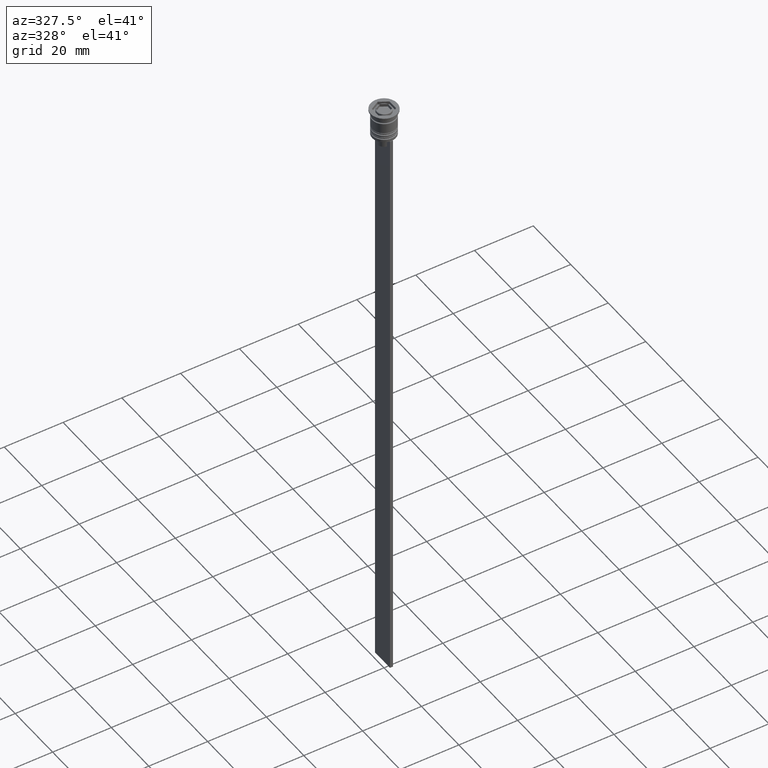
[diagram: clean part render]
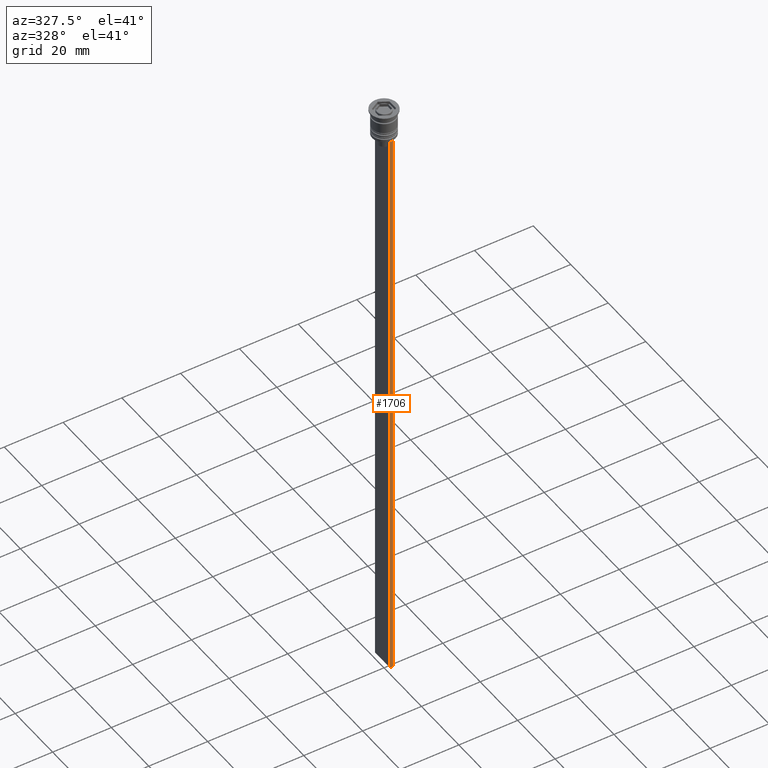
[diagram: same view with one face highlighted and labeled with its STEP entity id]
A machine part, auxiliary view. The second image highlights one B-rep face of the part: STEP entity #1706.
In plain terms, the highlighted planar face has unit normal (0, -1, -0).
Its self-contained STEP definition (entity closure, byte-faithful):
#71 = FACE_OUTER_BOUND ( 'NONE', #948, .T. ) ;
#152 = LINE ( 'NONE', #1893, #1661 ) ;
#211 = EDGE_CURVE ( 'NONE', #321, #2305, #360, .T. ) ;
#243 = CARTESIAN_POINT ( 'NONE',  ( -0.5000000000000000000, -4.000000000000000000, -209.5000000000000284 ) ) ;
#283 = DIRECTION ( 'NONE',  ( 0.000000000000000000, -1.000000000000000000, -0.000000000000000000 ) ) ;
#321 = VERTEX_POINT ( 'NONE', #2250 ) ;
#360 = LINE ( 'NONE', #2358, #1517 ) ;
#390 = EDGE_CURVE ( 'NONE', #1264, #321, #1674, .T. ) ;
#448 = CARTESIAN_POINT ( 'NONE',  ( -0.5000000000000000000, -4.000000000000000000, -1.437742251701450202 ) ) ;
#462 = ORIENTED_EDGE ( 'NONE', *, *, #390, .F. ) ;
#506 = DIRECTION ( 'NONE',  ( 1.000000000000000000, 0.000000000000000000, 0.000000000000000000 ) ) ;
#609 = ORIENTED_EDGE ( 'NONE', *, *, #211, .F. ) ;
#740 = VERTEX_POINT ( 'NONE', #1981 ) ;
#884 = DIRECTION ( 'NONE',  ( 0.000000000000000000, 0.000000000000000000, -1.000000000000000000 ) ) ;
#939 = ORIENTED_EDGE ( 'NONE', *, *, #1267, .T. ) ;
#948 = EDGE_LOOP ( 'NONE', ( #1004, #939, #609, #462 ) ) ;
#1004 = ORIENTED_EDGE ( 'NONE', *, *, #2384, .F. ) ;
#1045 = CARTESIAN_POINT ( 'NONE',  ( 0.5000000000000000000, -4.000000000000000000, -9.500000000000000000 ) ) ;
#1062 = DIRECTION ( 'NONE',  ( 0.000000000000000000, 0.000000000000000000, -1.000000000000000000 ) ) ;
#1264 = VERTEX_POINT ( 'NONE', #1045 ) ;
#1267 = EDGE_CURVE ( 'NONE', #740, #2305, #1652, .T. ) ;
#1437 = CARTESIAN_POINT ( 'NONE',  ( 0.5000000000000000000, -4.000000000000000000, -1.437742251701450202 ) ) ;
#1517 = VECTOR ( 'NONE', #2342, 1000.000000000000000 ) ;
#1626 = DIRECTION ( 'NONE',  ( 0.000000000000000000, 0.000000000000000000, -1.000000000000000000 ) ) ;
#1652 = LINE ( 'NONE', #448, #1816 ) ;
#1661 = VECTOR ( 'NONE', #506, 1000.000000000000000 ) ;
#1674 = LINE ( 'NONE', #2449, #2049 ) ;
#1706 = ADVANCED_FACE ( 'NONE', ( #71 ), #2408, .T. ) ;
#1816 = VECTOR ( 'NONE', #884, 1000.000000000000000 ) ;
#1893 = CARTESIAN_POINT ( 'NONE',  ( 0.5000000000000000000, -4.000000000000000000, -9.500000000000000000 ) ) ;
#1981 = CARTESIAN_POINT ( 'NONE',  ( -0.5000000000000000000, -4.000000000000000000, -9.500000000000000000 ) ) ;
#2019 = AXIS2_PLACEMENT_3D ( 'NONE', #1437, #283, #1626 ) ;
#2049 = VECTOR ( 'NONE', #1062, 1000.000000000000000 ) ;
#2250 = CARTESIAN_POINT ( 'NONE',  ( 0.5000000000000000000, -4.000000000000000000, -209.5000000000000284 ) ) ;
#2305 = VERTEX_POINT ( 'NONE', #243 ) ;
#2342 = DIRECTION ( 'NONE',  ( -1.000000000000000000, 0.000000000000000000, 0.000000000000000000 ) ) ;
#2358 = CARTESIAN_POINT ( 'NONE',  ( 0.5000000000000000000, -4.000000000000000000, -209.5000000000000284 ) ) ;
#2384 = EDGE_CURVE ( 'NONE', #740, #1264, #152, .T. ) ;
#2408 = PLANE ( 'NONE',  #2019 ) ;
#2449 = CARTESIAN_POINT ( 'NONE',  ( 0.5000000000000000000, -4.000000000000000000, -1.437742251701450202 ) ) ;